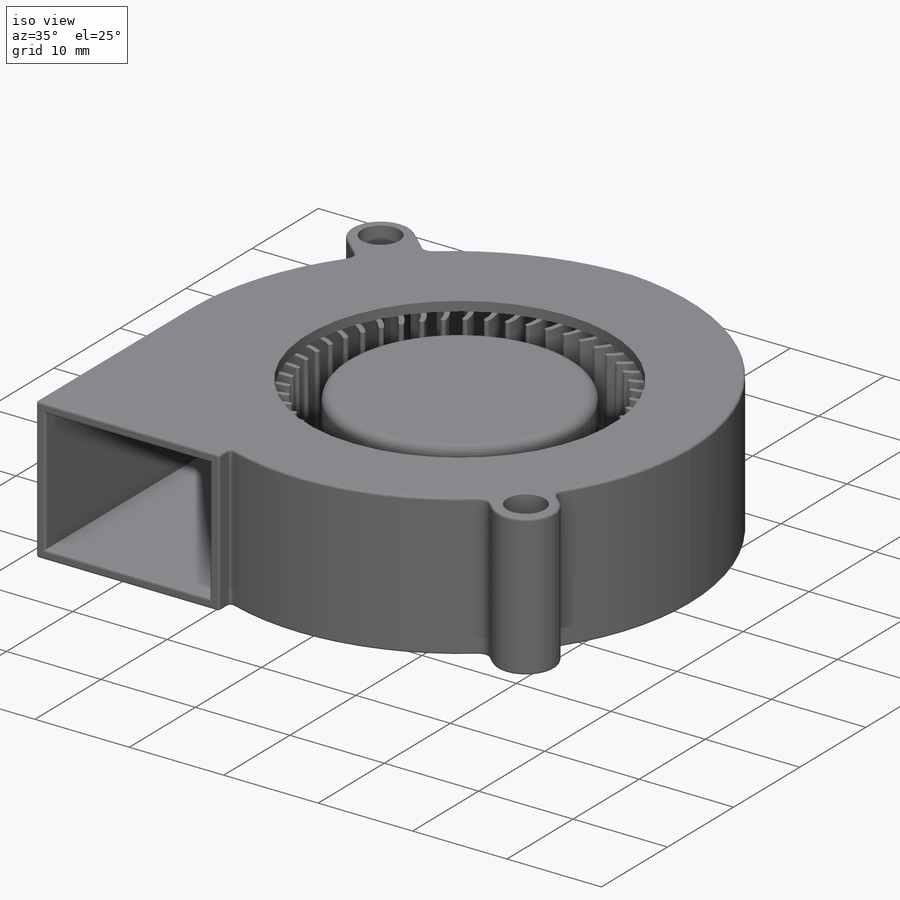
[diagram: iso view]
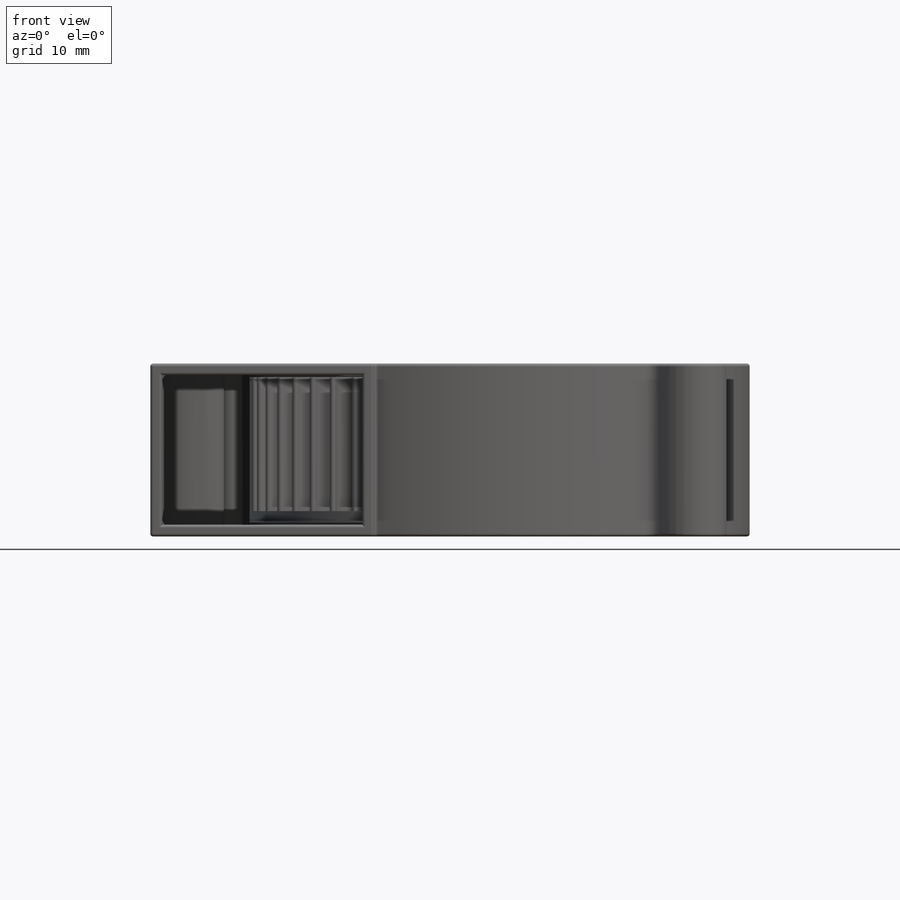
[diagram: front view]
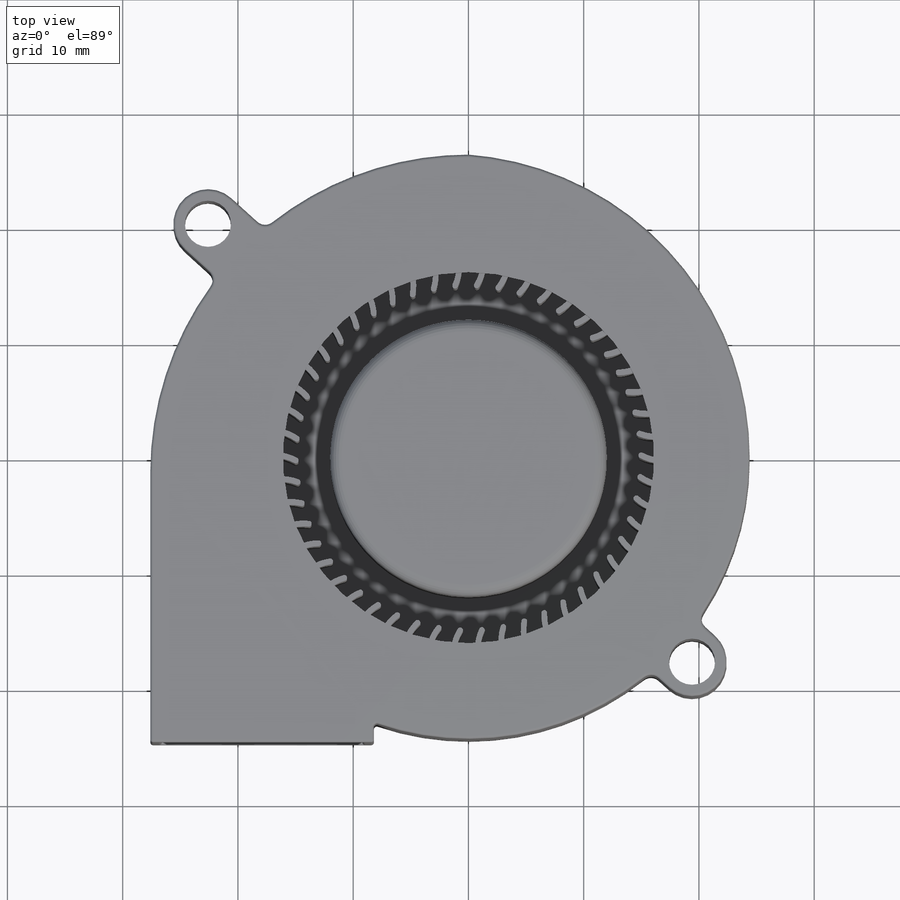
[diagram: top view]
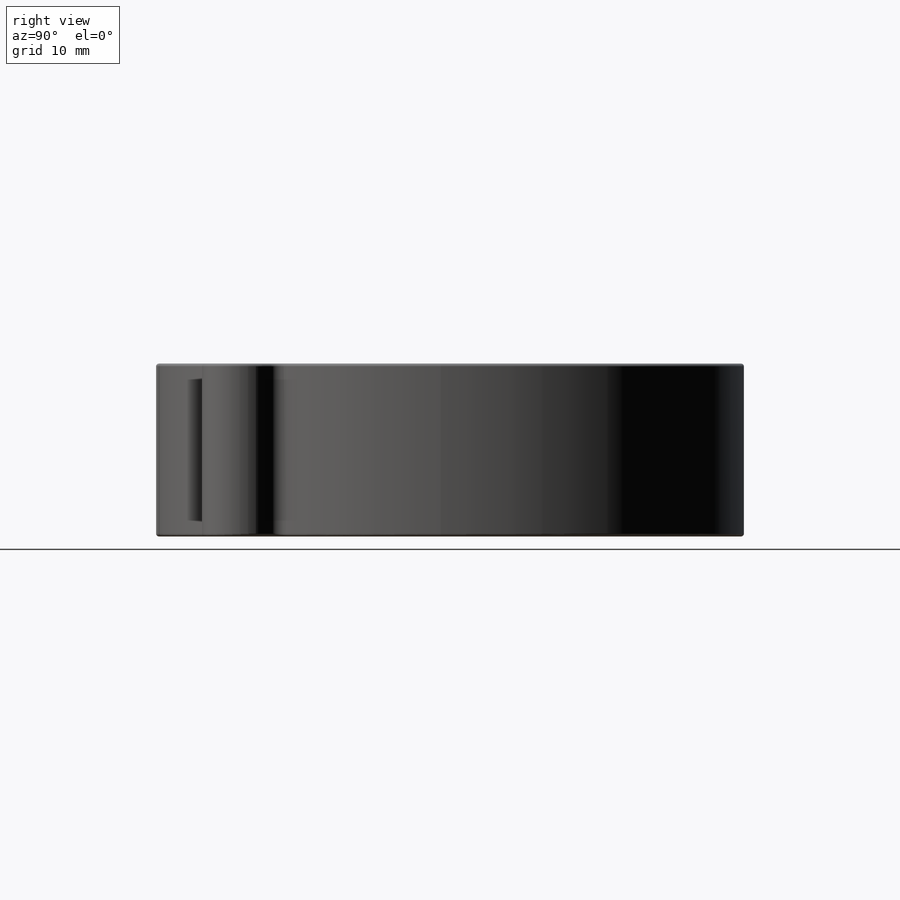
[diagram: right view]
SOLIDWORKS PART (.sldprt)
format: sldprt  version: not decoded by parser v0  size: 994,304 bytes
history: native  units: mm
features: sketch x5, extrude x5, plane x3, fillet x2, material x1, shell x1 (+13 scaffold rows collapsed)
feature tree (30):
  scaffold x13  (default folders/planes/origin — collapsed)
  material  "Material <not specified>"
  sketch  "Sketch1"  dims[c1.D1=~53.164359mm c1.D2=51.6mm c1.D5=4.0mm c1.D6=4.0mm c1.D7=~31.27472mm c1.D12=~23.767423mm c1.D13=32.2mm c1.D15=4.5mm c1.D8=4.5mm c1.D3=4.0mm c2.D15=1.0mm c2.D7=31.5mm c2.D1=51.6mm c2.D2=51.6mm c2.D3=27.7mm c2.D4=25.4mm c2.D5=45.5mm c2.D6=20.0mm c3.D1=20.0mm c3.D2=20.0mm c3.D3=20.1mm c3.D4=20.1mm c3.D7=25.4mm c3.D8=27.7mm c3.D9=23.9mm c3.D10=26.2mm c3.D12=19.4mm c3.D14=51.0mm c3.D15=44.0mm c4.D10=47.0mm c4.D8=44.0mm c4.D4=47.0mm c4.D2=52.0mm c4.D9=28.0mm c4.D3=45.0mm c4.D7=25.6mm c4.D16=23.0mm c5.D7=11.5mm c5.D9=10.2mm c5.D11=1.0mm]
  extrude  "BODY"  Depth=7.5mm
  shell  "Shell"  Thickness=1mm
  sketch  "Sketch2"
  extrude  "Boss-Extrude2"  Depth=1mm
  plane  "Plane1"  Offset=0.2mm
  sketch  "Sketch3"  dims[D1=24.0mm]
  extrude  "MOTOR"  [1 undecoded]
  fillet  "Fillet1"  Radius=1mm
  fillet  "Fillet2"  Radius=0.25mm
  sketch  "Sketch9"  dims[D1=38.0mm]
  extrude  "BLADE BASE"  Depth=1mm
  sketch  "Sketch10"  dims[c1.D2=~2.142928mm c1.D1=4.0mm c2.D2=0.5mm c2.D1=0.25mm c2.D3=0.5mm c2.D4=50.0]
  extrude  "BLADE"  Depth=0.2mm
  plane  "Plane2"
  plane  "Plane3"
decode coverage: 11 of 13 modeling features carry decoded parameters
note: ~ marks probable driven/reference dimensions
note: 1 parameter value undecoded
note: suppression state not decoded; provenance and decode notes live in map.json
